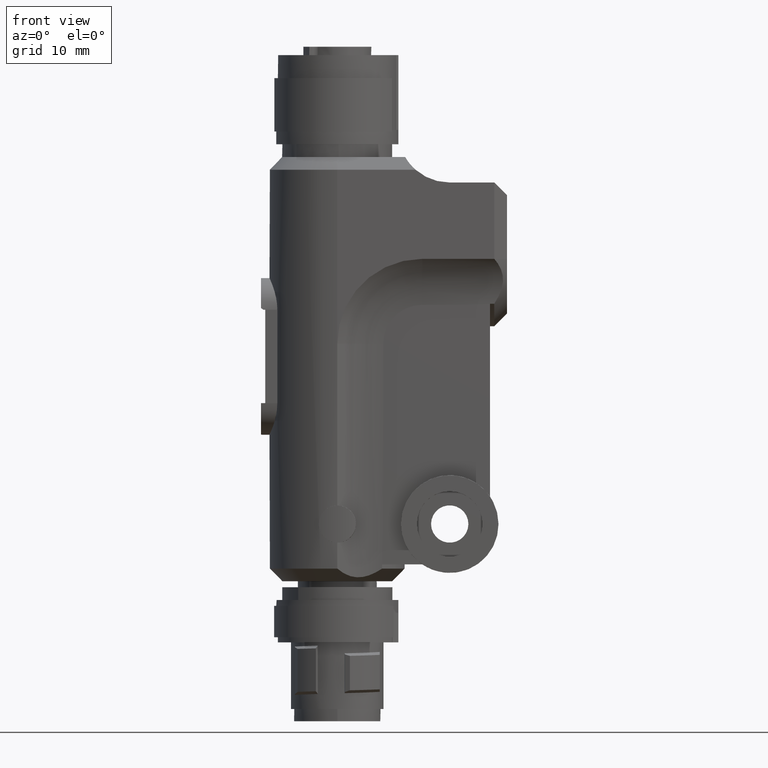
[diagram: clean part render]
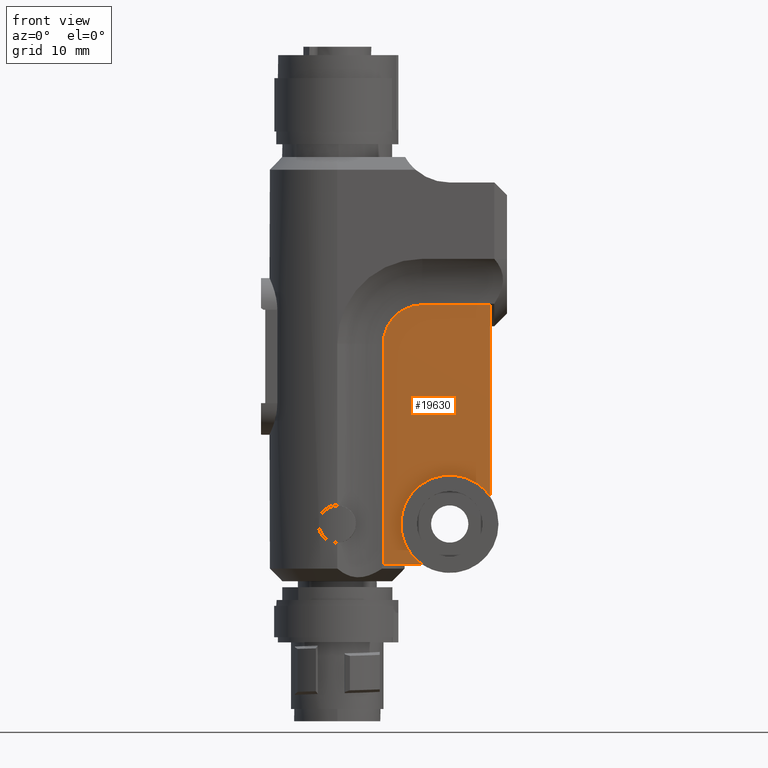
[diagram: same view with one face highlighted and labeled with its STEP entity id]
A machine part, front view. The second image highlights one B-rep face of the part: STEP entity #19630.
In plain terms, the highlighted planar face has unit normal (0, -1, 0).
Its self-contained STEP definition (entity closure, byte-faithful):
#10620=CARTESIAN_POINT('',(6.001,10.009629650796,2.));
#10630=VERTEX_POINT('',#10620);
#10660=CARTESIAN_POINT('',(6.001,13.25,6.75000000000001));
#10670=DIRECTION('',(1.,0.,0.));
#10680=DIRECTION('',(0.,1.,0.));
#10690=AXIS2_PLACEMENT_3D('',#10660,#10670,#10680);
#10700=CIRCLE('',#10690,5.75000000000003);
#10710=CARTESIAN_POINT('',(6.001,7.49999999999997,6.75000000000001));
#10720=VERTEX_POINT('',#10710);
#10730=EDGE_CURVE('',#10720,#10630,#10700,.T.);
#11250=CARTESIAN_POINT('',(6.001,18.,32.582010224373));
#11260=VERTEX_POINT('',#11250);
#11610=CARTESIAN_POINT('',(6.001,18.,9.99037034920399));
#11620=VERTEX_POINT('',#11610);
#11650=CARTESIAN_POINT('',(6.001,18.,0.));
#11660=DIRECTION('',(0.,-1.88064205402298E-31,-1.));
#11670=VECTOR('',#11660,1.);
#11680=LINE('',#11650,#11670);
#11690=EDGE_CURVE('',#11260,#11620,#11680,.T.);
#18050=CARTESIAN_POINT('',(6.001,5.41798977562688,2.));
#18060=VERTEX_POINT('',#18050);
#18090=CARTESIAN_POINT('',(6.001,0.,2.));
#18100=DIRECTION('',(0.,-1.,0.));
#18110=VECTOR('',#18100,1.);
#18120=LINE('',#18090,#18110);
#18130=EDGE_CURVE('',#10630,#18060,#18120,.T.);
#19280=CARTESIAN_POINT('',(6.001,15.4615034935439,27.3375668471251));
#19290=DIRECTION('',(1.,0.,0.));
#19300=DIRECTION('',(0.,-1.,0.));
#19310=AXIS2_PLACEMENT_3D('',#19280,#19290,#19300);
#19320=PLANE('',#19310);
#19330=CARTESIAN_POINT('',(6.001,20.,32.582010224373));
#19340=DIRECTION('',(0.,1.,0.));
#19350=VECTOR('',#19340,1.);
#19360=LINE('',#19330,#19350);
#19370=CARTESIAN_POINT('',(6.001,9.99979125739767,32.5820102196181));
#19380=VERTEX_POINT('',#19370);
#19390=EDGE_CURVE('',#19380,#11260,#19360,.T.);
#19400=ORIENTED_EDGE('',*,*,#19390,.F.);
#19410=ORIENTED_EDGE('',*,*,#11690,.F.);
#19420=EDGE_CURVE('',#11620,#10720,#10700,.T.);
#19430=ORIENTED_EDGE('',*,*,#19420,.F.);
#19440=ORIENTED_EDGE('',*,*,#10730,.F.);
#19450=ORIENTED_EDGE('',*,*,#18130,.F.);
#19460=CARTESIAN_POINT('',(6.001,5.41798977562688,0.));
#19470=DIRECTION('',(0.,0.,-1.));
#19480=VECTOR('',#19470,1.);
#19490=LINE('',#19460,#19480);
#19500=CARTESIAN_POINT('',(6.001,5.41798977562713,28.));
#19510=VERTEX_POINT('',#19500);
#19520=EDGE_CURVE('',#19510,#18060,#19490,.T.);
#19530=ORIENTED_EDGE('',*,*,#19520,.T.);
#19540=CARTESIAN_POINT('',(6.001,10.,28.));
#19550=DIRECTION('',(1.,4.93038065763133E-31,2.52970265222012E-16));
#19560=DIRECTION('',(6.89181434628495E-31,-1.,-7.75361359933837E-16));
#19570=AXIS2_PLACEMENT_3D('',#19540,#19550,#19560);
#19580=CIRCLE('',#19570,4.58201022437288);
#19590=EDGE_CURVE('',#19380,#19510,#19580,.T.);
#19600=ORIENTED_EDGE('',*,*,#19590,.T.);
#19610=EDGE_LOOP('',(#19600,#19530,#19450,#19440,#19430,#19410,#19400));
#19620=FACE_OUTER_BOUND('',#19610,.T.);
#19630=ADVANCED_FACE('',(#19620),#19320,.T.);